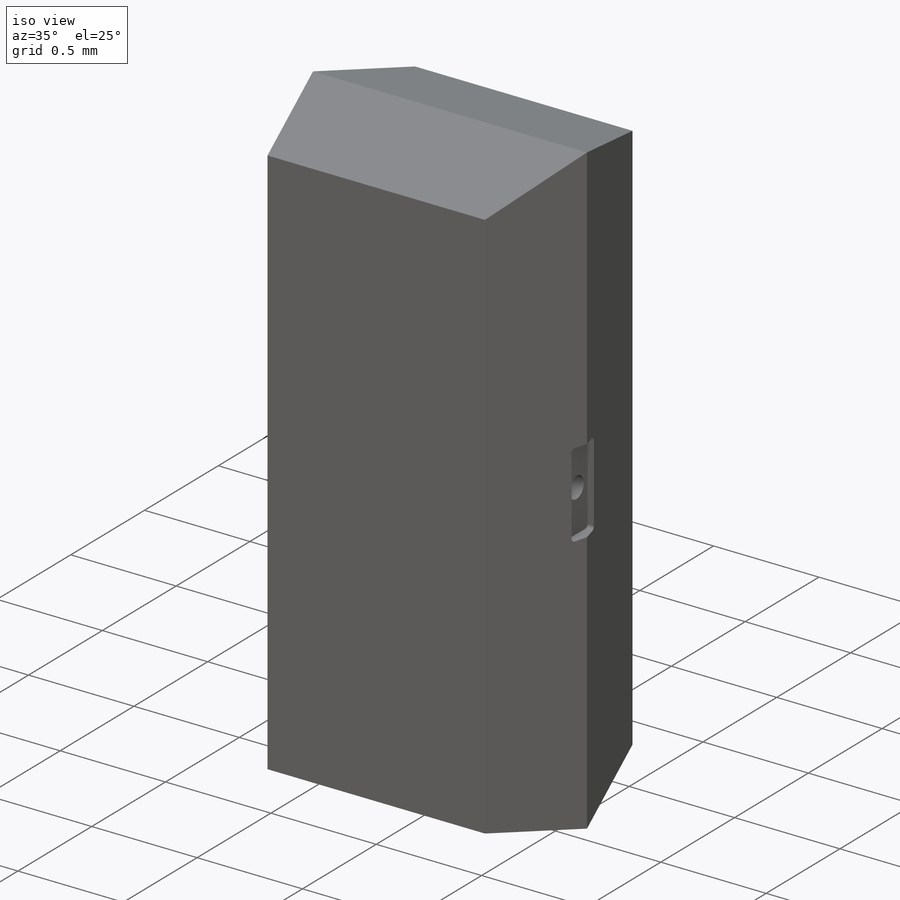
[diagram: iso view]
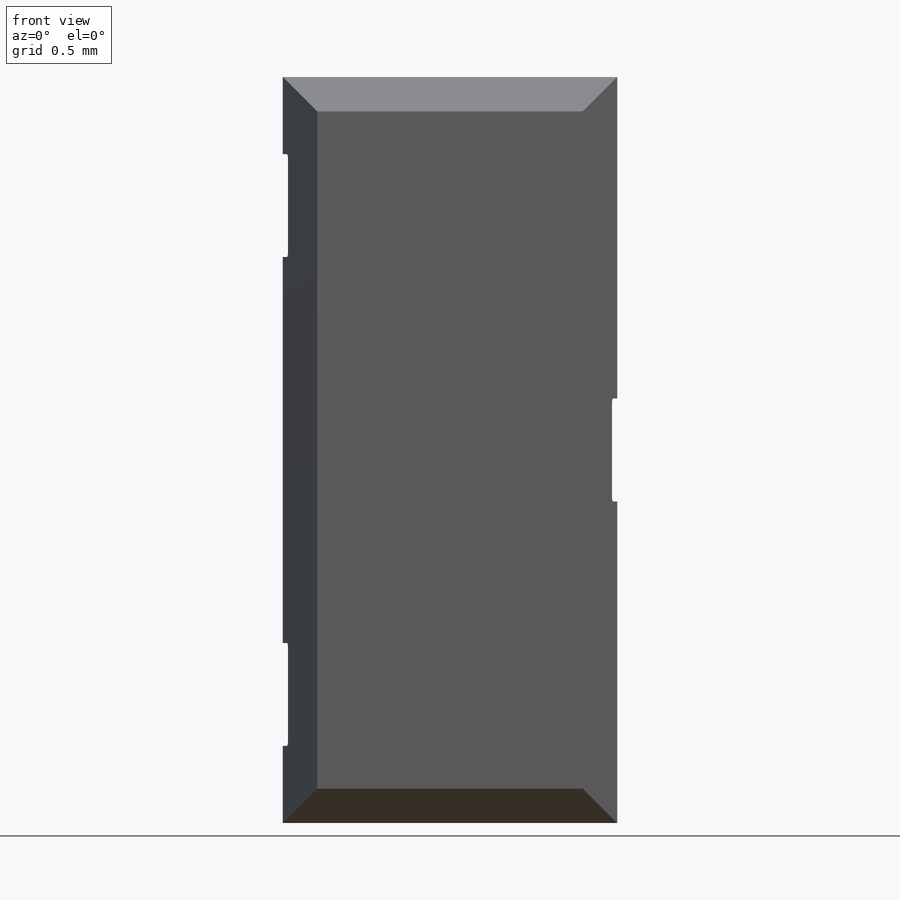
[diagram: front view]
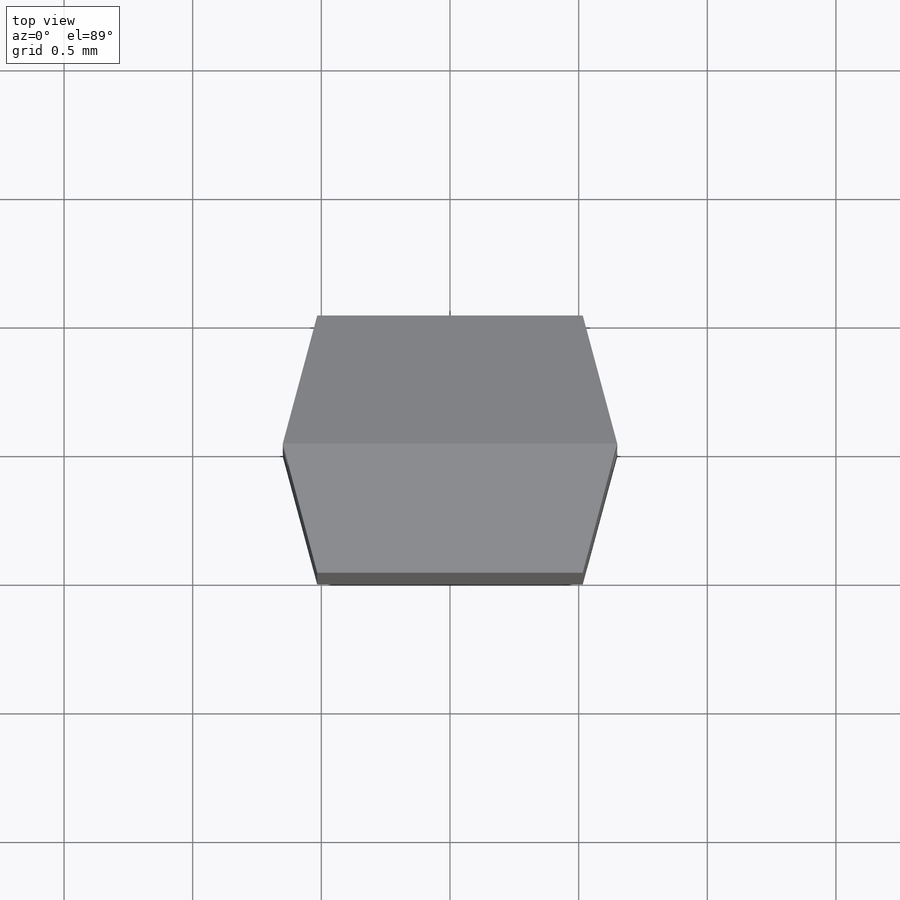
[diagram: top view]
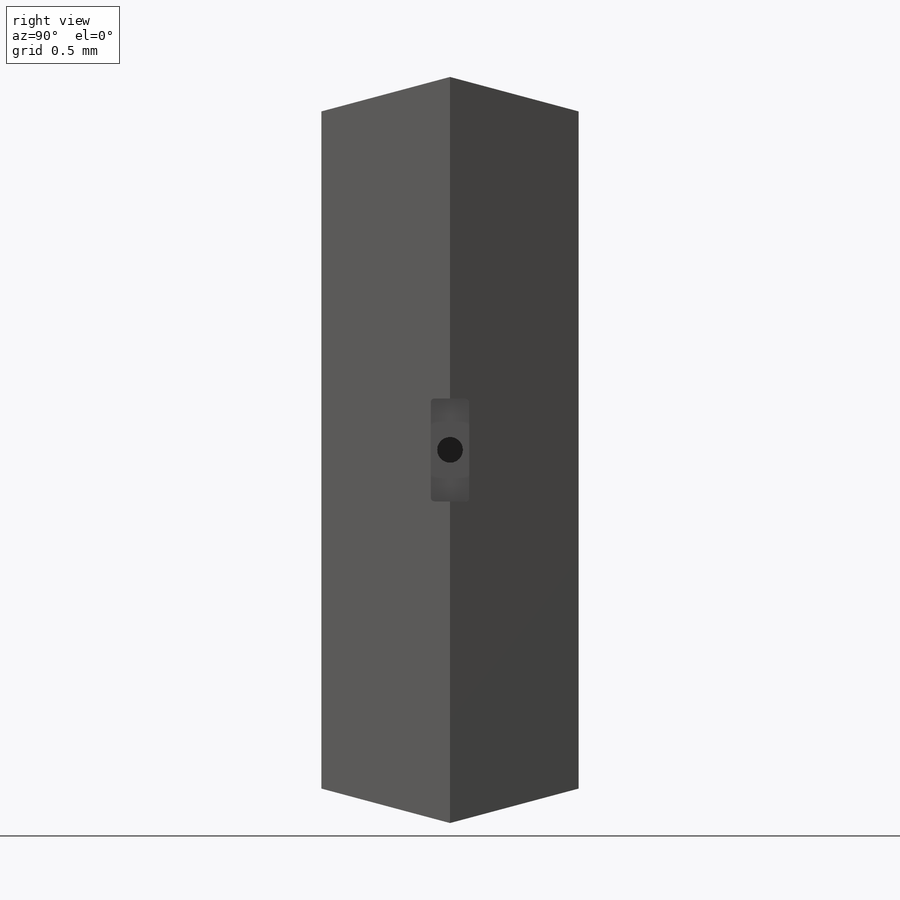
[diagram: right view]
SOLIDWORKS PART (.sldprt)
format: sldprt  version: not decoded by parser v0  size: 282,112 bytes
history: native  units: mm
features: plane x6, sketch x5, cut_extrude x4, material x1, extrude x1 (+10 scaffold rows collapsed)
feature tree (27):
  scaffold x10  (default folders/planes/origin — collapsed)
  material  "Borracha de silicone"
  plane  "Plano frontal"
  plane  "Plano superior"
  plane  "Plano direito"
  plane  "Plano5"  Offset=0.5mm
  sketch  "Esboço15"  dims[c1.D5=0.01mm c1.D1=0.7mm c1.D2=0.7mm c1.D3=4.4mm c1.D4=10.0mm c2.D1=2.9mm c2.D2=1.3mm]
  extrude  "Ressalto-extrusão1"  Depth=0.5mm
  sketch  "Esboço18"  dims[D1=0.1mm D3=1.9mm D2=3.0]
  plane  "Plano6"  Offset=0.65mm
  plane  "Plano7"  Offset=0.65mm
  cut_extrude  "Corte-extrusão1"  Depth=1mm
  cut_extrude  "Corte-extrusão2"  [1 undecoded]
  sketch  "Esboço18<3>"  dims[D1=1.0mm]
  sketch  "Esboço19"  dims[c1.D3=0.015mm c1.D1=0.4mm c1.D2=~0.177052mm c2.D2=90.0deg c3.D2=0.15mm c3.D4=3.0]
  cut_extrude  "Corte-extrusão3"  Depth=0.05mm
  cut_extrude  "Corte-extrusão4"  [1 undecoded]
  sketch  "Esboço19<3>"  dims[D1=0.05mm]
decode coverage: 8 of 10 modeling features carry decoded parameters
note: ~ marks probable driven/reference dimensions
note: 2 parameter values undecoded
note: suppression state not decoded; provenance and decode notes live in map.json
